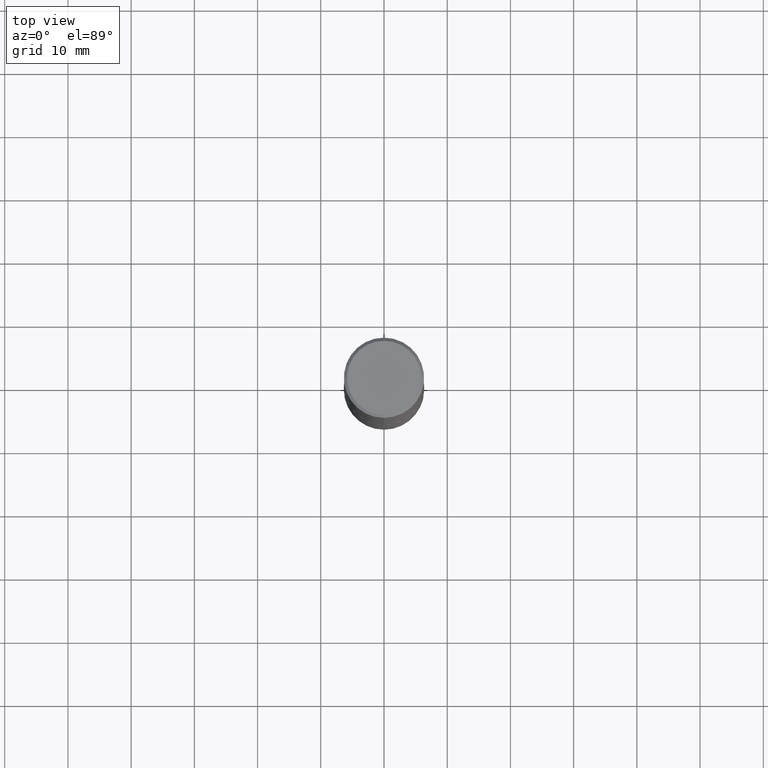
[diagram: clean part render]
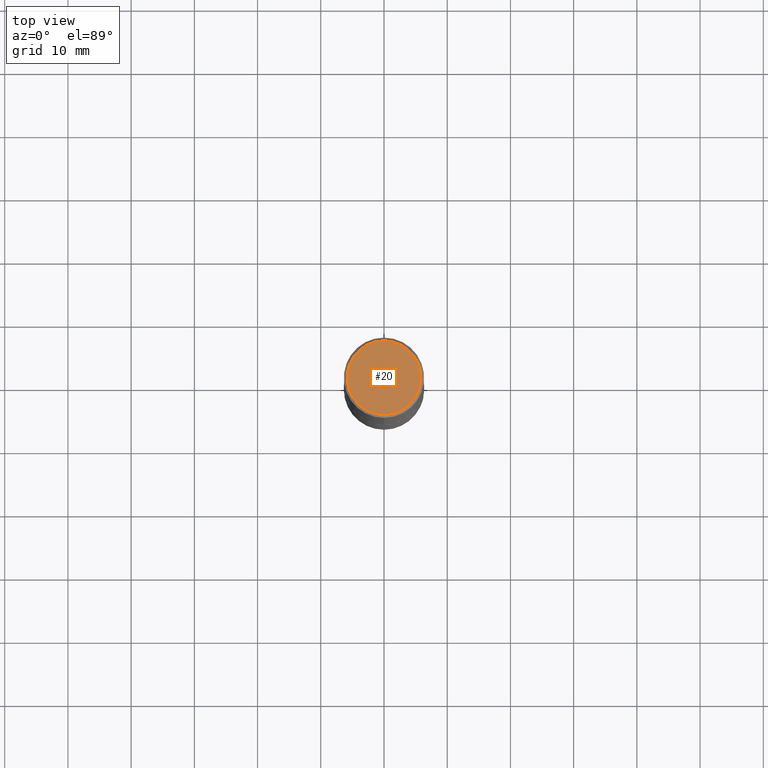
[diagram: same view with one face highlighted and labeled with its STEP entity id]
A machine part, top view. The second image highlights one B-rep face of the part: STEP entity #20.
In plain terms, the highlighted planar face has unit normal (0, -0, -1).
Its self-contained STEP definition (entity closure, byte-faithful):
#5 = VERTEX_POINT ( 'NONE', #385 ) ;
#6 = PLANE ( 'NONE',  #289 ) ;
#20 = ADVANCED_FACE ( 'NONE', ( #35 ), #6, .F. ) ;
#24 = EDGE_CURVE ( 'NONE', #341, #5, #90, .T. ) ;
#35 = FACE_OUTER_BOUND ( 'NONE', #276, .T. ) ;
#65 = ORIENTED_EDGE ( 'NONE', *, *, #297, .T. ) ;
#70 = CIRCLE ( 'NONE', #97, 0.2299999999999997602 ) ;
#87 = DIRECTION ( 'NONE',  ( -2.445157063098640632E-29, 3.491927772686322567E-15, 1.000000000000000000 ) ) ;
#90 = CIRCLE ( 'NONE', #172, 0.2299999999999997602 ) ;
#97 = AXIS2_PLACEMENT_3D ( 'NONE', #308, #87, #124 ) ;
#102 = DIRECTION ( 'NONE',  ( -6.982962677686265922E-15, -1.000000000000000000, 3.491927772686322567E-15 ) ) ;
#124 = DIRECTION ( 'NONE',  ( -6.982962677686265922E-15, -1.000000000000000000, 3.491927772686322567E-15 ) ) ;
#138 = DIRECTION ( 'NONE',  ( 2.445157063098640352E-29, -3.491927772686322173E-15, -1.000000000000000000 ) ) ;
#163 = DIRECTION ( 'NONE',  ( 6.982962677686265922E-15, 1.000000000000000000, -3.491927772686322173E-15 ) ) ;
#172 = AXIS2_PLACEMENT_3D ( 'NONE', #266, #391, #102 ) ;
#266 = CARTESIAN_POINT ( 'NONE',  ( -5.012358744754175369E-45, 7.158147413767250712E-31, 2.049912793087505445E-16 ) ) ;
#276 = EDGE_LOOP ( 'NONE', ( #345, #65 ) ) ;
#283 = CARTESIAN_POINT ( 'NONE',  ( 1.675911042644703379E-15, 0.2299999999999997602, -5.981521084091028137E-16 ) ) ;
#289 = AXIS2_PLACEMENT_3D ( 'NONE', #294, #138, #163 ) ;
#294 = CARTESIAN_POINT ( 'NONE',  ( 1.606081415867839490E-15, 0.2299999999999997602, -7.006477480634780860E-16 ) ) ;
#297 = EDGE_CURVE ( 'NONE', #5, #341, #70, .T. ) ;
#308 = CARTESIAN_POINT ( 'NONE',  ( -5.012358744754175369E-45, 7.158147413767250712E-31, 2.049912793087505445E-16 ) ) ;
#341 = VERTEX_POINT ( 'NONE', #283 ) ;
#345 = ORIENTED_EDGE ( 'NONE', *, *, #24, .T. ) ;
#385 = CARTESIAN_POINT ( 'NONE',  ( -1.646519519465166376E-15, -0.2299999999999997602, 1.008134667026603804E-15 ) ) ;
#391 = DIRECTION ( 'NONE',  ( -2.445157063098640632E-29, 3.491927772686322567E-15, 1.000000000000000000 ) ) ;